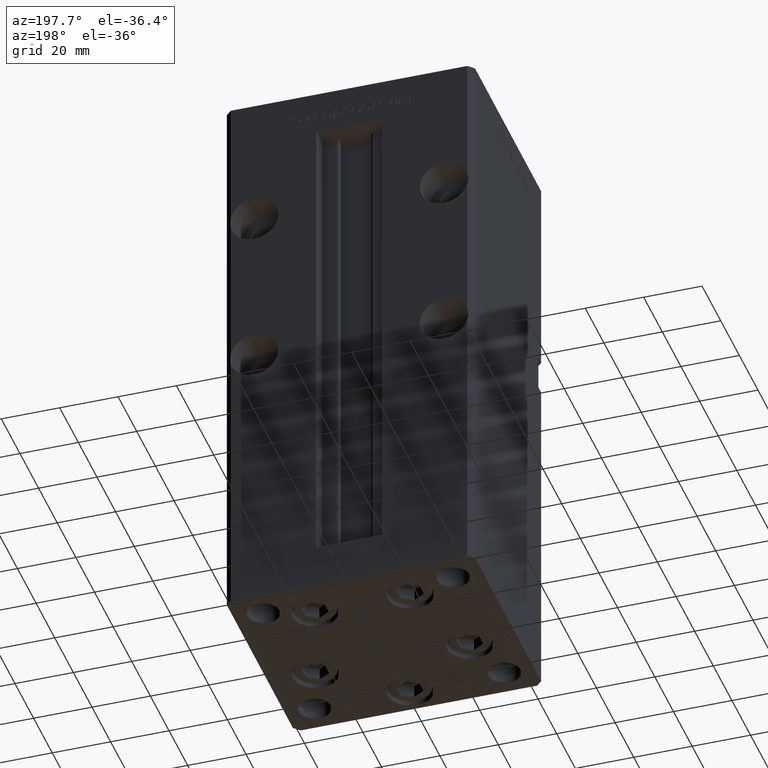
[diagram: clean part render]
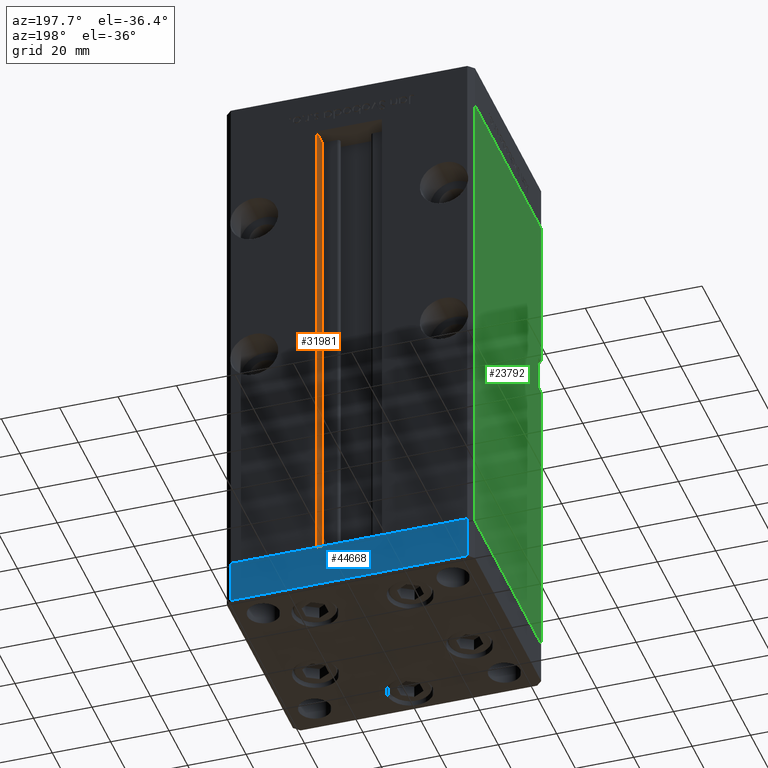
[diagram: same view with three faces highlighted in distinct colors, each labeled with its STEP entity id]
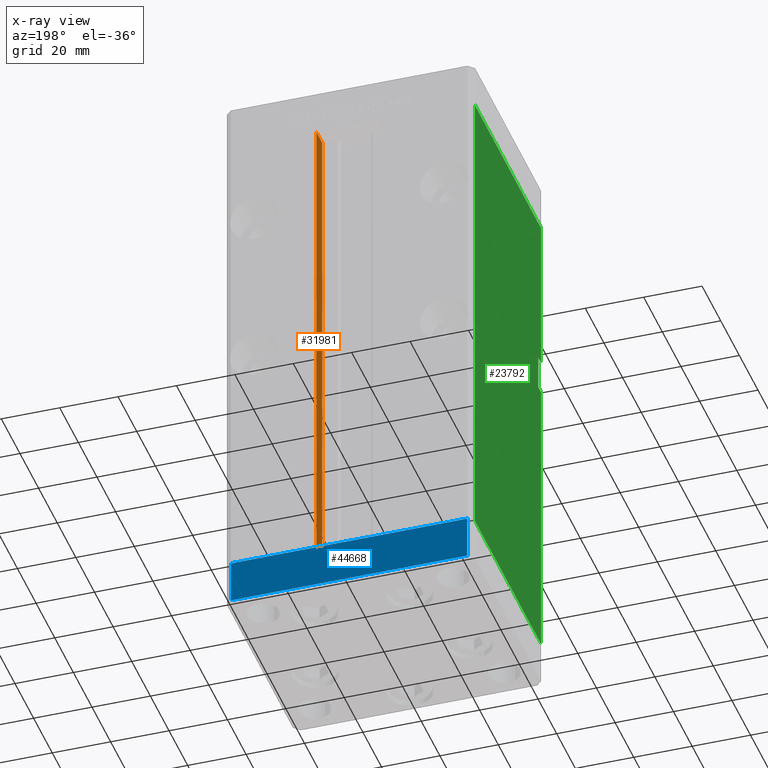
[diagram: x-ray of the same camera — body ghosted, the three highlighted faces saturated]
A machine part, auxiliary view with three faces highlighted in distinct colors.
The next image is the same camera in x-ray (body ghosted, the three faces saturated) — at least one of them is partly hidden behind the body in this view.
Their STEP definitions:

[orange] entity #31981 — the highlighted planar face has unit normal (1, 0, 0).
#793 = CARTESIAN_POINT ( 'NONE',  ( 11.24999999999999822, 31.00000000000000000, 0.000000000000000000 ) ) ;
#2313 = EDGE_LOOP ( 'NONE', ( #6741, #21196, #19813, #3858 ) ) ;
#2362 = CARTESIAN_POINT ( 'NONE',  ( 11.24999999999999822, 31.00000000000000000, 0.000000000000000000 ) ) ;
#2611 = LINE ( 'NONE', #32197, #40015 ) ;
#3858 = ORIENTED_EDGE ( 'NONE', *, *, #30281, .F. ) ;
#5057 = VECTOR ( 'NONE', #11199, 1000.000000000000000 ) ;
#6050 = EDGE_CURVE ( 'NONE', #29057, #21527, #33030, .T. ) ;
#6741 = ORIENTED_EDGE ( 'NONE', *, *, #6050, .F. ) ;
#7842 = CARTESIAN_POINT ( 'NONE',  ( 11.24999999999999822, 31.00000000000000000, 168.5000000000000000 ) ) ;
#11199 = DIRECTION ( 'NONE',  ( 0.000000000000000000, 1.000000000000000000, 0.000000000000000000 ) ) ;
#11443 = CARTESIAN_POINT ( 'NONE',  ( 11.24999999999999112, 37.50000000000000000, 168.5000000000000000 ) ) ;
#12299 = FACE_OUTER_BOUND ( 'NONE', #2313, .T. ) ;
#12572 = DIRECTION ( 'NONE',  ( 0.000000000000000000, 0.000000000000000000, -1.000000000000000000 ) ) ;
#12631 = AXIS2_PLACEMENT_3D ( 'NONE', #29500, #20637, #12572 ) ;
#15772 = VERTEX_POINT ( 'NONE', #793 ) ;
#16875 = PLANE ( 'NONE',  #12631 ) ;
#18784 = DIRECTION ( 'NONE',  ( -0.000000000000000000, -0.000000000000000000, 1.000000000000000000 ) ) ;
#19746 = VERTEX_POINT ( 'NONE', #7842 ) ;
#19813 = ORIENTED_EDGE ( 'NONE', *, *, #24407, .T. ) ;
#20637 = DIRECTION ( 'NONE',  ( 1.000000000000000000, -0.000000000000000000, 0.000000000000000000 ) ) ;
#21196 = ORIENTED_EDGE ( 'NONE', *, *, #42096, .F. ) ;
#21527 = VERTEX_POINT ( 'NONE', #11443 ) ;
#23612 = LINE ( 'NONE', #2362, #27990 ) ;
#24407 = EDGE_CURVE ( 'NONE', #15772, #19746, #23612, .T. ) ;
#25240 = CARTESIAN_POINT ( 'NONE',  ( 11.24999999999999822, 37.50000000000000000, 0.000000000000000000 ) ) ;
#27990 = VECTOR ( 'NONE', #18784, 1000.000000000000000 ) ;
#28654 = LINE ( 'NONE', #48838, #5057 ) ;
#29057 = VERTEX_POINT ( 'NONE', #36563 ) ;
#29500 = CARTESIAN_POINT ( 'NONE',  ( 11.24999999999999822, 31.00000000000000000, 0.000000000000000000 ) ) ;
#30281 = EDGE_CURVE ( 'NONE', #21527, #19746, #2611, .T. ) ;
#31981 = ADVANCED_FACE ( 'NONE', ( #12299 ), #16875, .F. ) ;
#32197 = CARTESIAN_POINT ( 'NONE',  ( 11.24999999999999822, 0.000000000000000000, 168.5000000000000000 ) ) ;
#33030 = LINE ( 'NONE', #25240, #43188 ) ;
#33297 = DIRECTION ( 'NONE',  ( -0.000000000000000000, -0.000000000000000000, 1.000000000000000000 ) ) ;
#36563 = CARTESIAN_POINT ( 'NONE',  ( 11.24999999999999822, 37.50000000000000000, 0.000000000000000000 ) ) ;
#39979 = DIRECTION ( 'NONE',  ( -0.000000000000000000, -1.000000000000000000, 0.000000000000000000 ) ) ;
#40015 = VECTOR ( 'NONE', #39979, 1000.000000000000000 ) ;
#42096 = EDGE_CURVE ( 'NONE', #15772, #29057, #28654, .T. ) ;
#43188 = VECTOR ( 'NONE', #33297, 1000.000000000000000 ) ;
#48838 = CARTESIAN_POINT ( 'NONE',  ( 11.24999999999999822, 31.00000000000000000, 0.000000000000000000 ) ) ;

[blue] entity #44668 — the highlighted planar face has unit normal (-0, 1, 0).
#825 = VECTOR ( 'NONE', #13266, 1000.000000000000000 ) ;
#2456 = CARTESIAN_POINT ( 'NONE',  ( 40.49999999999991473, 37.50000000000000711, -15.00000000000000000 ) ) ;
#2776 = EDGE_LOOP ( 'NONE', ( #7974, #44345, #9544, #33235 ) ) ;
#3505 = EDGE_CURVE ( 'NONE', #7169, #43658, #35156, .T. ) ;
#4673 = CARTESIAN_POINT ( 'NONE',  ( -40.50000000000000711, 37.49999999999997868, -15.00000000000000000 ) ) ;
#5978 = LINE ( 'NONE', #21597, #18003 ) ;
#6006 = AXIS2_PLACEMENT_3D ( 'NONE', #2456, #15638, #48181 ) ;
#7169 = VERTEX_POINT ( 'NONE', #13921 ) ;
#7974 = ORIENTED_EDGE ( 'NONE', *, *, #39360, .F. ) ;
#9544 = ORIENTED_EDGE ( 'NONE', *, *, #3505, .T. ) ;
#11866 = PLANE ( 'NONE',  #6006 ) ;
#12652 = VERTEX_POINT ( 'NONE', #43897 ) ;
#13132 = CARTESIAN_POINT ( 'NONE',  ( 40.49999999999991473, 37.50000000000000711, -15.00000000000000000 ) ) ;
#13266 = DIRECTION ( 'NONE',  ( 0.000000000000000000, 0.000000000000000000, 1.000000000000000000 ) ) ;
#13921 = CARTESIAN_POINT ( 'NONE',  ( 40.49999999999991473, 37.50000000000000711, -15.00000000000000000 ) ) ;
#15638 = DIRECTION ( 'NONE',  ( -3.426614273534436165E-16, 1.000000000000000000, 0.000000000000000000 ) ) ;
#18003 = VECTOR ( 'NONE', #46857, 1000.000000000000000 ) ;
#21489 = VECTOR ( 'NONE', #29535, 1000.000000000000000 ) ;
#21597 = CARTESIAN_POINT ( 'NONE',  ( 40.49999999999991473, 37.50000000000000711, 0.000000000000000000 ) ) ;
#27101 = DIRECTION ( 'NONE',  ( -1.000000000000000000, -3.426614273534436165E-16, 0.000000000000000000 ) ) ;
#29535 = DIRECTION ( 'NONE',  ( 0.000000000000000000, 0.000000000000000000, 1.000000000000000000 ) ) ;
#31531 = VERTEX_POINT ( 'NONE', #51971 ) ;
#31672 = CARTESIAN_POINT ( 'NONE',  ( 40.49999999999991473, 37.50000000000000711, -15.00000000000000000 ) ) ;
#31778 = FACE_OUTER_BOUND ( 'NONE', #2776, .T. ) ;
#33235 = ORIENTED_EDGE ( 'NONE', *, *, #40457, .T. ) ;
#35156 = LINE ( 'NONE', #31672, #51728 ) ;
#37479 = LINE ( 'NONE', #4673, #825 ) ;
#39360 = EDGE_CURVE ( 'NONE', #12652, #31531, #5978, .T. ) ;
#40457 = EDGE_CURVE ( 'NONE', #43658, #31531, #37479, .T. ) ;
#41353 = LINE ( 'NONE', #13132, #21489 ) ;
#43658 = VERTEX_POINT ( 'NONE', #46263 ) ;
#43897 = CARTESIAN_POINT ( 'NONE',  ( 40.49999999999991473, 37.50000000000000711, 0.000000000000000000 ) ) ;
#44345 = ORIENTED_EDGE ( 'NONE', *, *, #46088, .F. ) ;
#44668 = ADVANCED_FACE ( 'NONE', ( #31778 ), #11866, .T. ) ;
#46088 = EDGE_CURVE ( 'NONE', #7169, #12652, #41353, .T. ) ;
#46263 = CARTESIAN_POINT ( 'NONE',  ( -40.50000000000000711, 37.49999999999997868, -15.00000000000000000 ) ) ;
#46857 = DIRECTION ( 'NONE',  ( -1.000000000000000000, -3.426614273534436165E-16, 0.000000000000000000 ) ) ;
#48181 = DIRECTION ( 'NONE',  ( -1.000000000000000000, -3.426614273534436165E-16, 0.000000000000000000 ) ) ;
#51728 = VECTOR ( 'NONE', #27101, 1000.000000000000000 ) ;
#51971 = CARTESIAN_POINT ( 'NONE',  ( -40.50000000000000711, 37.49999999999997868, 0.000000000000000000 ) ) ;

[green] entity #23792 — the highlighted planar face has unit normal (1, 0, 0).
#490 = LINE ( 'NONE', #28741, #49861 ) ;
#1100 = CARTESIAN_POINT ( 'NONE',  ( -42.49999999999998579, -32.50000000000000711, 114.0000000000000142 ) ) ;
#2555 = CARTESIAN_POINT ( 'NONE',  ( -42.50000000000001421, 35.50000000000000711, 168.5000000000000000 ) ) ;
#2759 = CARTESIAN_POINT ( 'NONE',  ( -42.50000000000001421, 35.50000000000000711, 0.000000000000000000 ) ) ;
#2795 = CARTESIAN_POINT ( 'NONE',  ( -42.49999999999998579, -32.50000000000000711, 102.0000000000000142 ) ) ;
#3919 = LINE ( 'NONE', #20334, #24870 ) ;
#4480 = ORIENTED_EDGE ( 'NONE', *, *, #46027, .F. ) ;
#4873 = VERTEX_POINT ( 'NONE', #12771 ) ;
#5167 = EDGE_CURVE ( 'NONE', #13891, #51925, #28579, .T. ) ;
#6045 = DIRECTION ( 'NONE',  ( -0.000000000000000000, -1.000000000000000000, -0.000000000000000000 ) ) ;
#6849 = LINE ( 'NONE', #2795, #51087 ) ;
#7104 = DIRECTION ( 'NONE',  ( -0.000000000000000000, -1.000000000000000000, -0.000000000000000000 ) ) ;
#9103 = DIRECTION ( 'NONE',  ( 3.909236002201255146E-16, -1.000000000000000000, 0.000000000000000000 ) ) ;
#9839 = DIRECTION ( 'NONE',  ( -3.909236002201255639E-16, 1.000000000000000000, 0.000000000000000000 ) ) ;
#10111 = PLANE ( 'NONE',  #29673 ) ;
#12771 = CARTESIAN_POINT ( 'NONE',  ( -42.49999999999998579, -35.50000000000001421, 114.0000000000000142 ) ) ;
#13327 = VECTOR ( 'NONE', #49008, 1000.000000000000000 ) ;
#13651 = ORIENTED_EDGE ( 'NONE', *, *, #26460, .T. ) ;
#13891 = VERTEX_POINT ( 'NONE', #39522 ) ;
#14140 = DIRECTION ( 'NONE',  ( 1.000000000000000000, 3.909236002201255639E-16, -0.000000000000000000 ) ) ;
#14653 = ORIENTED_EDGE ( 'NONE', *, *, #43996, .T. ) ;
#15163 = ORIENTED_EDGE ( 'NONE', *, *, #38105, .T. ) ;
#15227 = CARTESIAN_POINT ( 'NONE',  ( -42.49999999999998579, -32.50000000000000711, 102.0000000000000142 ) ) ;
#15839 = ORIENTED_EDGE ( 'NONE', *, *, #26454, .F. ) ;
#16249 = VECTOR ( 'NONE', #24037, 1000.000000000000000 ) ;
#19379 = VERTEX_POINT ( 'NONE', #28886 ) ;
#19960 = CARTESIAN_POINT ( 'NONE',  ( -42.50000000000001421, 35.50000000000000711, 168.5000000000000000 ) ) ;
#20044 = DIRECTION ( 'NONE',  ( -5.782411586589358625E-16, 0.000000000000000000, -1.000000000000000000 ) ) ;
#20334 = CARTESIAN_POINT ( 'NONE',  ( -42.50000000000001421, 35.50000000000000711, 168.5000000000000000 ) ) ;
#21485 = EDGE_CURVE ( 'NONE', #53025, #48899, #44778, .T. ) ;
#21641 = ORIENTED_EDGE ( 'NONE', *, *, #21485, .F. ) ;
#22586 = VERTEX_POINT ( 'NONE', #19960 ) ;
#23197 = EDGE_CURVE ( 'NONE', #19379, #4873, #28833, .T. ) ;
#23792 = ADVANCED_FACE ( 'NONE', ( #39385 ), #10111, .F. ) ;
#24037 = DIRECTION ( 'NONE',  ( 3.909236002201255146E-16, -1.000000000000000000, 0.000000000000000000 ) ) ;
#24870 = VECTOR ( 'NONE', #27605, 1000.000000000000000 ) ;
#26454 = EDGE_CURVE ( 'NONE', #48899, #13891, #6849, .T. ) ;
#26460 = EDGE_CURVE ( 'NONE', #53025, #4873, #26752, .T. ) ;
#26752 = LINE ( 'NONE', #35340, #33912 ) ;
#27131 = CARTESIAN_POINT ( 'NONE',  ( -42.49999999999998579, -35.50000000000000711, 0.000000000000000000 ) ) ;
#27543 = CARTESIAN_POINT ( 'NONE',  ( -42.50000000000001421, 35.50000000000000711, 0.000000000000000000 ) ) ;
#27605 = DIRECTION ( 'NONE',  ( -0.000000000000000000, -0.000000000000000000, -1.000000000000000000 ) ) ;
#28579 = LINE ( 'NONE', #44979, #51798 ) ;
#28741 = CARTESIAN_POINT ( 'NONE',  ( -42.50000000000001421, 35.50000000000000711, 168.5000000000000000 ) ) ;
#28833 = LINE ( 'NONE', #36345, #13327 ) ;
#28886 = CARTESIAN_POINT ( 'NONE',  ( -42.49999999999998579, -35.50000000000000711, 168.5000000000000000 ) ) ;
#29673 = AXIS2_PLACEMENT_3D ( 'NONE', #2555, #14140, #9839 ) ;
#30431 = EDGE_LOOP ( 'NONE', ( #51079, #15839, #21641, #13651, #34532, #4480, #14653, #15163 ) ) ;
#31821 = DIRECTION ( 'NONE',  ( -0.000000000000000000, -0.000000000000000000, -1.000000000000000000 ) ) ;
#32097 = LINE ( 'NONE', #27543, #16249 ) ;
#33912 = VECTOR ( 'NONE', #6045, 1000.000000000000000 ) ;
#34532 = ORIENTED_EDGE ( 'NONE', *, *, #23197, .F. ) ;
#35340 = CARTESIAN_POINT ( 'NONE',  ( -42.49999999999998579, -32.50000000000000711, 114.0000000000000142 ) ) ;
#36345 = CARTESIAN_POINT ( 'NONE',  ( -42.49999999999998579, -35.50000000000000711, 168.5000000000000000 ) ) ;
#38105 = EDGE_CURVE ( 'NONE', #47220, #51925, #32097, .T. ) ;
#39025 = VECTOR ( 'NONE', #20044, 1000.000000000000000 ) ;
#39385 = FACE_OUTER_BOUND ( 'NONE', #30431, .T. ) ;
#39522 = CARTESIAN_POINT ( 'NONE',  ( -42.49999999999998579, -35.49999999999996447, 102.0000000000000142 ) ) ;
#40724 = CARTESIAN_POINT ( 'NONE',  ( -42.49999999999998579, -32.50000000000000711, 114.0000000000000142 ) ) ;
#43996 = EDGE_CURVE ( 'NONE', #22586, #47220, #3919, .T. ) ;
#44778 = LINE ( 'NONE', #40724, #39025 ) ;
#44979 = CARTESIAN_POINT ( 'NONE',  ( -42.49999999999998579, -35.50000000000000711, 168.5000000000000000 ) ) ;
#46027 = EDGE_CURVE ( 'NONE', #22586, #19379, #490, .T. ) ;
#47220 = VERTEX_POINT ( 'NONE', #2759 ) ;
#48899 = VERTEX_POINT ( 'NONE', #15227 ) ;
#49008 = DIRECTION ( 'NONE',  ( -0.000000000000000000, -0.000000000000000000, -1.000000000000000000 ) ) ;
#49861 = VECTOR ( 'NONE', #9103, 1000.000000000000000 ) ;
#51079 = ORIENTED_EDGE ( 'NONE', *, *, #5167, .F. ) ;
#51087 = VECTOR ( 'NONE', #7104, 1000.000000000000000 ) ;
#51798 = VECTOR ( 'NONE', #31821, 1000.000000000000000 ) ;
#51925 = VERTEX_POINT ( 'NONE', #27131 ) ;
#53025 = VERTEX_POINT ( 'NONE', #1100 ) ;